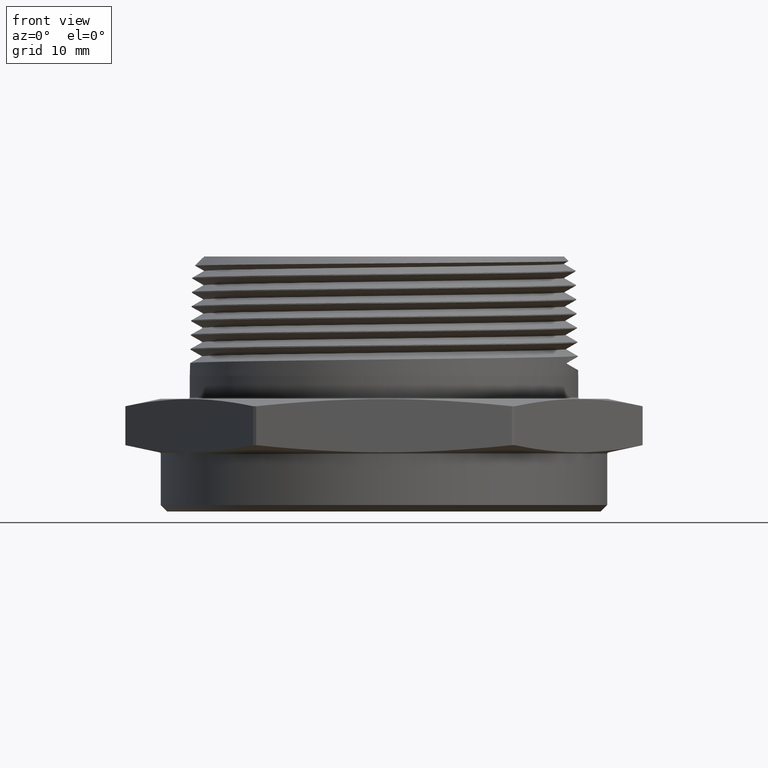
[diagram: clean part render]
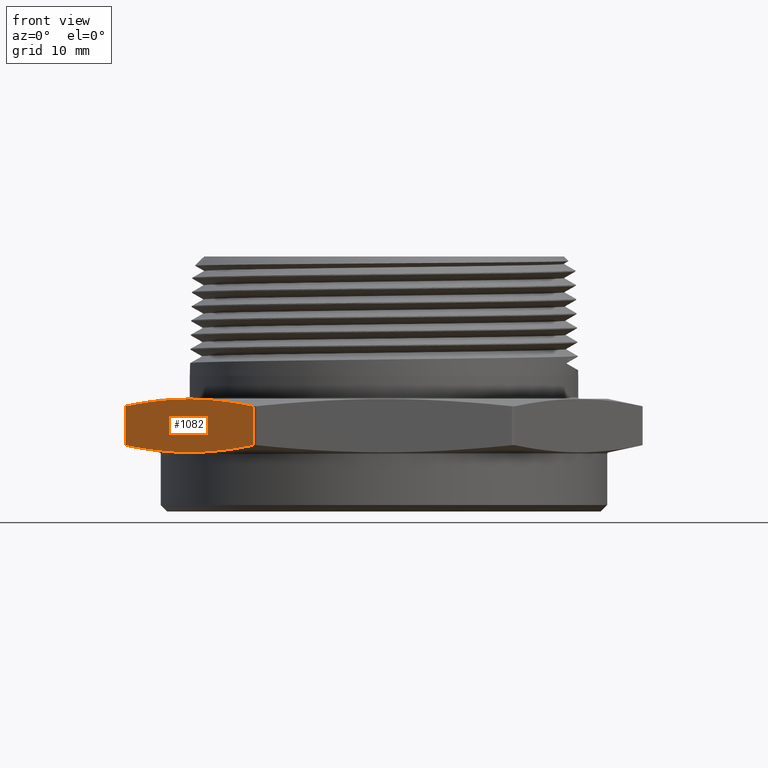
[diagram: same view with one face highlighted and labeled with its STEP entity id]
A machine part, front view. The second image highlights one B-rep face of the part: STEP entity #1082.
In plain terms, the highlighted planar face has unit normal (0.866, 0.5, 0).
Its self-contained STEP definition (entity closure, byte-faithful):
#256 = VERTEX_POINT ( 'NONE', #715 ) ;
#258 = VERTEX_POINT ( 'NONE', #717 ) ;
#287 = VERTEX_POINT ( 'NONE', #667 ) ;
#291 = VERTEX_POINT ( 'NONE', #671 ) ;
#442 = LINE ( 'NONE', #7440, #444 ) ;
#444 = VECTOR ( 'NONE', #7441, 39.37007874015748100 ) ;
#667 = CARTESIAN_POINT ( 'NONE',  ( -0.7998911548470241100, -1.364547879280009200, 0.2839361787795282600 ) ) ;
#671 = CARTESIAN_POINT ( 'NONE',  ( -0.7998911548470241100, -1.364547879280009200, 0.04606382122047159700 ) ) ;
#715 = CARTESIAN_POINT ( 'NONE',  ( -1.581678705560181500, -0.01045212071999098700, 0.04606382122047169400 ) ) ;
#717 = CARTESIAN_POINT ( 'NONE',  ( -1.581678705560181500, -0.01045212071999098700, 0.2839361787795283700 ) ) ;
#984 = EDGE_CURVE ( 'NONE', #258, #256, #442, .T. ) ;
#1054 = EDGE_CURVE ( 'NONE', #291, #287, #7213, .T. ) ;
#1068 = EDGE_CURVE ( 'NONE', #287, #258, #6568, .T. ) ;
#1073 = EDGE_CURVE ( 'NONE', #256, #291, #6573, .T. ) ;
#1082 = ADVANCED_FACE ( 'NONE', ( #7248 ), #7058, .F. ) ;
#1694 = ORIENTED_EDGE ( 'NONE', *, *, #984, .T. ) ;
#1975 = AXIS2_PLACEMENT_3D ( 'NONE', #7059, #7064, #7065 ) ;
#6568 = B_SPLINE_CURVE_WITH_KNOTS ( 'NONE', 3,
 ( #6966, #6967, #6979, #6980, #6981, #6982, #6983, #6984, #6985 ),
 .UNSPECIFIED., .F., .F.,
 ( 4, 2, 1, 2, 4 ),
 ( 1.903613379386070000E-006, 0.009930605507436482100, 0.01985930740149357800, 0.02978800929555067100, 0.03971671118960776900 ),
 .UNSPECIFIED. ) ;
#6573 = B_SPLINE_CURVE_WITH_KNOTS ( 'NONE', 3,
 ( #7015, #7014, #7026, #7027, #7028, #7029, #7030, #7031, #7032 ),
 .UNSPECIFIED., .F., .F.,
 ( 4, 2, 1, 2, 4 ),
 ( 1.903613379456233300E-006, 0.009930605507436549700, 0.01985930740149364400, 0.02978800929555073700, 0.03971671118960783100 ),
 .UNSPECIFIED. ) ;
#6940 = DIRECTION ( 'NONE',  ( 1.254986547952384500E-016, 0.0000000000000000000, 1.000000000000000000 ) ) ;
#6943 = CARTESIAN_POINT ( 'NONE',  ( -0.7998911548470242200, -1.364547879280009400, -4.905664297508275000E-017 ) ) ;
#6966 = CARTESIAN_POINT ( 'NONE',  ( -0.7998911548470241100, -1.364547879280009200, 0.2839361787795282600 ) ) ;
#6967 = CARTESIAN_POINT ( 'NONE',  ( -0.8650401174064538100, -1.251706566066674000, 0.2976252195393023800 ) ) ;
#6979 = CARTESIAN_POINT ( 'NONE',  ( -0.9301890799658840700, -1.138865252853339400, 0.3087202058984836500 ) ) ;
#6980 = CARTESIAN_POINT ( 'NONE',  ( -1.060487005084743300, -0.9131826264266698100, 0.3238670318127608300 ) ) ;
#6981 = CARTESIAN_POINT ( 'NONE',  ( -1.190784930203602200, -0.6875000000000000000, 0.3318818369538389400 ) ) ;
#6982 = CARTESIAN_POINT ( 'NONE',  ( -1.321082855322462700, -0.4618173735733302500, 0.3238670318127608300 ) ) ;
#6983 = CARTESIAN_POINT ( 'NONE',  ( -1.451380780441321900, -0.2361347471466606100, 0.3087202058984836500 ) ) ;
#6984 = CARTESIAN_POINT ( 'NONE',  ( -1.516529743000751800, -0.1232934339333257700, 0.2976252195393024900 ) ) ;
#6985 = CARTESIAN_POINT ( 'NONE',  ( -1.581678705560181500, -0.01045212071999098700, 0.2839361787795283700 ) ) ;
#7014 = CARTESIAN_POINT ( 'NONE',  ( -1.516529743000751600, -0.1232934339333258000, 0.03237478046069752800 ) ) ;
#7015 = CARTESIAN_POINT ( 'NONE',  ( -1.581678705560181500, -0.01045212071999098700, 0.04606382122047169400 ) ) ;
#7026 = CARTESIAN_POINT ( 'NONE',  ( -1.451380780441321900, -0.2361347471466608300, 0.02127979410151642500 ) ) ;
#7027 = CARTESIAN_POINT ( 'NONE',  ( -1.321082855322461800, -0.4618173735733303000, 0.006132968187239140800 ) ) ;
#7028 = CARTESIAN_POINT ( 'NONE',  ( -1.190784930203602700, -0.6874999999999996700, -0.001881836953839109700 ) ) ;
#7029 = CARTESIAN_POINT ( 'NONE',  ( -1.060487005084743300, -0.9131826264266700300, 0.006132968187239135600 ) ) ;
#7030 = CARTESIAN_POINT ( 'NONE',  ( -0.9301890799658840700, -1.138865252853339800, 0.02127979410151638000 ) ) ;
#7031 = CARTESIAN_POINT ( 'NONE',  ( -0.8650401174064539200, -1.251706566066674600, 0.03237478046069750700 ) ) ;
#7032 = CARTESIAN_POINT ( 'NONE',  ( -0.7998911548470241100, -1.364547879280009200, 0.04606382122047159700 ) ) ;
#7058 = PLANE ( 'NONE',  #1975 ) ;
#7059 = CARTESIAN_POINT ( 'NONE',  ( -1.587713240271470600, -2.706930084083092500E-016, 0.3300000000000000200 ) ) ;
#7064 = DIRECTION ( 'NONE',  ( 0.8660254037844386000, 0.5000000000000002200, -0.0000000000000000000 ) ) ;
#7065 = DIRECTION ( 'NONE',  ( -0.5000000000000001100, 0.8660254037844384900, 0.0000000000000000000 ) ) ;
#7213 = LINE ( 'NONE', #6943, #7214 ) ;
#7214 = VECTOR ( 'NONE', #6940, 39.37007874015748100 ) ;
#7248 = FACE_OUTER_BOUND ( 'NONE', #7676, .T. ) ;
#7440 = CARTESIAN_POINT ( 'NONE',  ( -1.581678705560181500, -0.01045212071999098700, 4.905664297508275000E-017 ) ) ;
#7441 = DIRECTION ( 'NONE',  ( -1.254986547952384500E-016, -0.0000000000000000000, -1.000000000000000000 ) ) ;
#7676 = EDGE_LOOP ( 'NONE', ( #7717, #7718, #7719, #1694 ) ) ;
#7717 = ORIENTED_EDGE ( 'NONE', *, *, #1073, .T. ) ;
#7718 = ORIENTED_EDGE ( 'NONE', *, *, #1054, .T. ) ;
#7719 = ORIENTED_EDGE ( 'NONE', *, *, #1068, .T. ) ;